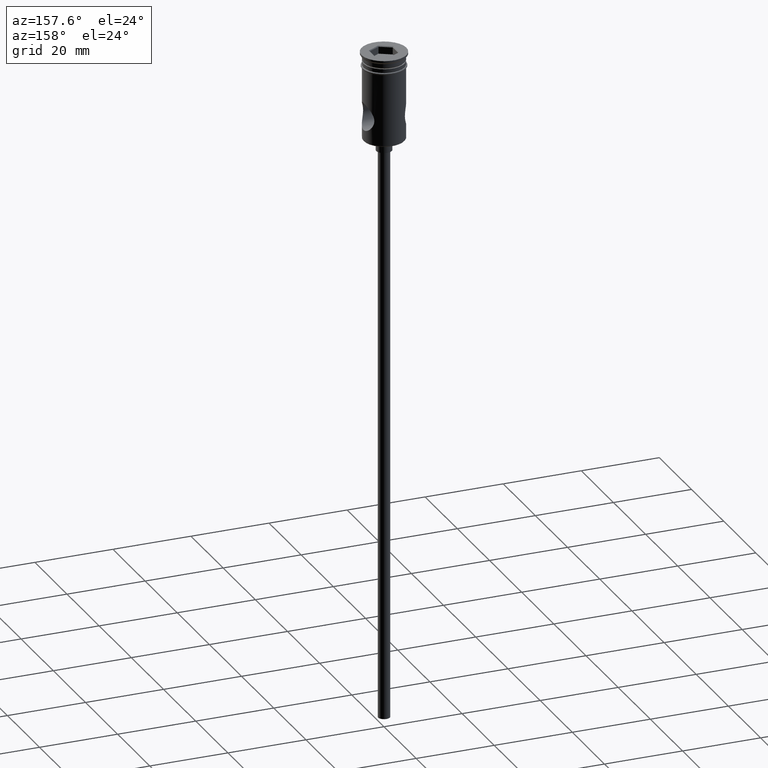
[diagram: clean part render]
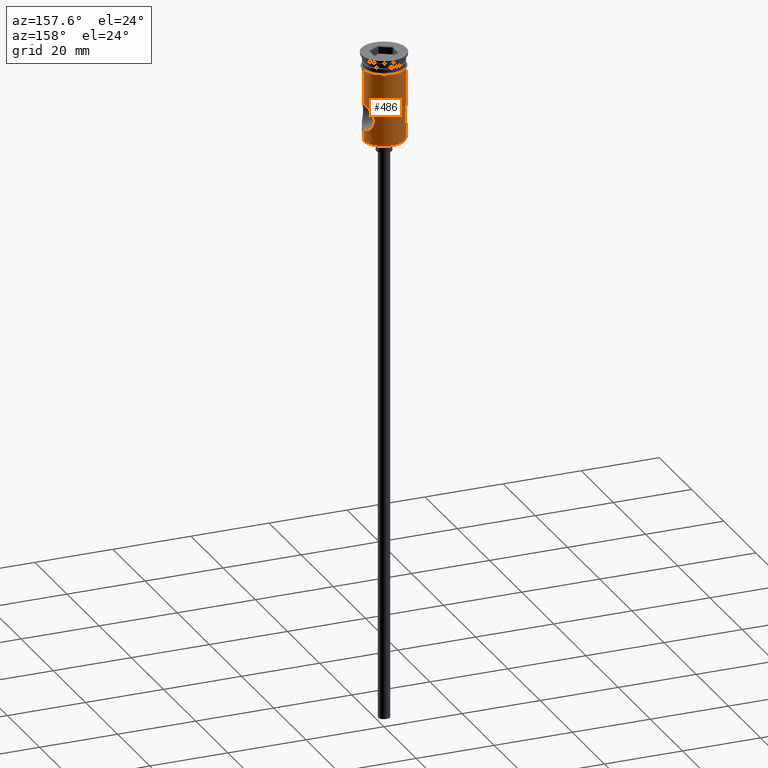
[diagram: same view with one face highlighted and labeled with its STEP entity id]
A machine part, auxiliary view. The second image highlights one B-rep face of the part: STEP entity #486.
In plain terms, the highlighted cylindrical surface (edge-blend (fillet) strip) has radius 5.25 mm, axis along (-0, -0, 1).
Its self-contained STEP definition (entity closure, byte-faithful):
#2 = VERTEX_POINT ( 'NONE', #452 ) ;
#9 = DIRECTION ( 'NONE',  ( -0.000000000000000000, -0.000000000000000000, 1.000000000000000000 ) ) ;
#16 = CARTESIAN_POINT ( 'NONE',  ( 4.015700048634967878, 3.382383198169304883, -15.06996144822462647 ) ) ;
#24 = VECTOR ( 'NONE', #1296, 1000.000000000000000 ) ;
#28 = CARTESIAN_POINT ( 'NONE',  ( 4.213805231981512023, 3.133507475994600444, -17.57552681985903220 ) ) ;
#31 = CARTESIAN_POINT ( 'NONE',  ( 5.249999999999997335, 0.000000000000000000, 0.000000000000000000 ) ) ;
#48 = CARTESIAN_POINT ( 'NONE',  ( 5.171738567981856605, 0.9322884155218371660, -19.38166086832590906 ) ) ;
#51 = VERTEX_POINT ( 'NONE', #251 ) ;
#92 = CARTESIAN_POINT ( 'NONE',  ( -4.708760133973806994, 2.328399268865065874, -13.37747860927764521 ) ) ;
#95 = CARTESIAN_POINT ( 'NONE',  ( -5.171446349193717928, 0.9340234967078269168, -19.38121539794984116 ) ) ;
#111 = CARTESIAN_POINT ( 'NONE',  ( -4.455882725706747038, 2.780268144892075632, -13.86229586798408597 ) ) ;
#114 = CARTESIAN_POINT ( 'NONE',  ( -5.233633430427243383, 0.4750094798020746967, -12.52441511600401824 ) ) ;
#137 = CARTESIAN_POINT ( 'NONE',  ( 5.011119671772967799, 1.580839205956426463, -19.13107480940702132 ) ) ;
#143 = CARTESIAN_POINT ( 'NONE',  ( 4.791726953342656081, 2.154678821938329047, -18.76742029390491950 ) ) ;
#152 = ORIENTED_EDGE ( 'NONE', *, *, #659, .T. ) ;
#153 = CARTESIAN_POINT ( 'NONE',  ( 4.943096194098154150, 1.780193258326856265, -19.02194769508573202 ) ) ;
#168 = CARTESIAN_POINT ( 'NONE',  ( 4.291847880858497000, 3.027309060174748101, -17.77045454751424103 ) ) ;
#186 = CARTESIAN_POINT ( 'NONE',  ( -5.249999999999998224, 6.429395695523602181E-16, -3.799999999999998934 ) ) ;
#201 = CARTESIAN_POINT ( 'NONE',  ( -3.934854629125830172, 3.476098995561850202, -15.52910205287916767 ) ) ;
#207 = CARTESIAN_POINT ( 'NONE',  ( -4.459834455484653404, 2.792467526987479687, -18.15591097312377400 ) ) ;
#209 = ORIENTED_EDGE ( 'NONE', *, *, #526, .F. ) ;
#215 = CIRCLE ( 'NONE', #414, 5.249999999999997335 ) ;
#219 = CARTESIAN_POINT ( 'NONE',  ( -5.010881149324091233, 1.581485525877044829, -19.13068937161849803 ) ) ;
#227 = CARTESIAN_POINT ( 'NONE',  ( -4.791591092289863241, 2.154829214170284502, -13.23284061381127330 ) ) ;
#229 = VERTEX_POINT ( 'NONE', #650 ) ;
#232 = EDGE_CURVE ( 'NONE', #229, #903, #746, .T. ) ;
#240 = VERTEX_POINT ( 'NONE', #186 ) ;
#246 = ORIENTED_EDGE ( 'NONE', *, *, #912, .F. ) ;
#247 = CARTESIAN_POINT ( 'NONE',  ( 3.956270316689134425, 3.451288398606817687, -16.59344471299515433 ) ) ;
#248 = VECTOR ( 'NONE', #687, 1000.000000000000000 ) ;
#251 = CARTESIAN_POINT ( 'NONE',  ( -5.249999999999997335, 6.429395695523601195E-16, -22.29999999999999716 ) ) ;
#275 = CYLINDRICAL_SURFACE ( 'NONE', #1108, 5.249999999999997335 ) ;
#287 = DIRECTION ( 'NONE',  ( -0.000000000000000000, -0.000000000000000000, 1.000000000000000000 ) ) ;
#290 = CARTESIAN_POINT ( 'NONE',  ( 5.249999999999998224, 0.2359691128690733219, -12.50000000000000000 ) ) ;
#332 = B_SPLINE_CURVE_WITH_KNOTS ( 'NONE', 3,
 ( #458, #1118, #114, #1211, #1330, #1124, #559, #227, #92, #761, #111, #566, #779, #1199, #1319, #201, #1325, #1219, #547, #987, #432, #874, #207, #653, #1432, #337, #219, #1101, #95, #663, #994, #442 ),
 .UNSPECIFIED., .F., .F.,
 ( 4, 2, 2, 2, 2, 2, 2, 2, 2, 2, 2, 2, 2, 2, 2, 4 ),
 ( 0.01131190453721613379, 0.01201796450896624492, 0.01272402448071635606, 0.01343008445246646719, 0.01413614442421657832, 0.01484220439596668772, 0.01554826436771679886, 0.01625432433946690999, 0.01696038431121701939, 0.01766644428296713226, 0.01837250425471724166, 0.01978462419821747087, 0.02049068416996758721, 0.02119674414171770355, 0.02190280411346781642, 0.02260886408521793275 ),
 .UNSPECIFIED. ) ;
#337 = CARTESIAN_POINT ( 'NONE',  ( -4.943496079229931617, 1.778885936374027477, -19.02256480771651326 ) ) ;
#345 = CARTESIAN_POINT ( 'NONE',  ( 5.249999999999997335, 0.000000000000000000, -22.29999999999999716 ) ) ;
#367 = CARTESIAN_POINT ( 'NONE',  ( 4.211626988821404183, 3.136439829262892776, -14.43012365747861914 ) ) ;
#379 = CARTESIAN_POINT ( 'NONE',  ( 4.710700327440309643, 2.324554412983745877, -13.37397079666039978 ) ) ;
#395 = CARTESIAN_POINT ( 'NONE',  ( 4.710272676435011796, 2.325337138264823356, -18.62521936663612010 ) ) ;
#407 = CARTESIAN_POINT ( 'NONE',  ( 0.000000000000000000, 0.000000000000000000, -3.799999999999998934 ) ) ;
#414 = AXIS2_PLACEMENT_3D ( 'NONE', #1041, #9, #612 ) ;
#422 = CARTESIAN_POINT ( 'NONE',  ( -5.249999999999997335, 0.000000000000000000, -19.50000000000000000 ) ) ;
#432 = CARTESIAN_POINT ( 'NONE',  ( -4.076244073135415036, 3.310471843351305843, -17.15838242263341229 ) ) ;
#442 = CARTESIAN_POINT ( 'NONE',  ( -5.249999999999997335, 0.000000000000000000, -19.50000000000000000 ) ) ;
#450 = CARTESIAN_POINT ( 'NONE',  ( -5.249999999999997335, 6.428491939192731130E-16, -12.50000000000000000 ) ) ;
#451 = VERTEX_POINT ( 'NONE', #345 ) ;
#452 = CARTESIAN_POINT ( 'NONE',  ( 5.249999999999997335, 0.000000000000000000, -19.50000000000000000 ) ) ;
#458 = CARTESIAN_POINT ( 'NONE',  ( -5.249999999999997335, 6.428491939192731130E-16, -12.50000000000000000 ) ) ;
#470 = LINE ( 'NONE', #1236, #248 ) ;
#471 = ORIENTED_EDGE ( 'NONE', *, *, #989, .T. ) ;
#484 = CARTESIAN_POINT ( 'NONE',  ( 4.073963173537556770, 3.313288510862781866, -14.84939764593511491 ) ) ;
#486 = ADVANCED_FACE ( 'NONE', ( #1345 ), #275, .T. ) ;
#499 = DIRECTION ( 'NONE',  ( -0.000000000000000000, -0.000000000000000000, 1.000000000000000000 ) ) ;
#518 = EDGE_CURVE ( 'NONE', #451, #51, #215, .T. ) ;
#525 = CARTESIAN_POINT ( 'NONE',  ( 5.249999999999997335, 0.000000000000000000, 0.000000000000000000 ) ) ;
#526 = EDGE_CURVE ( 'NONE', #2, #229, #1361, .T. ) ;
#537 = CARTESIAN_POINT ( 'NONE',  ( 5.010722034647405287, 1.582225660229891417, -12.86955452061876493 ) ) ;
#547 = CARTESIAN_POINT ( 'NONE',  ( -3.935709764125990606, 3.475135228226968298, -16.47752279465179726 ) ) ;
#559 = CARTESIAN_POINT ( 'NONE',  ( -4.941870577857391034, 1.783409467750111332, -12.98008101414071547 ) ) ;
#566 = CARTESIAN_POINT ( 'NONE',  ( -4.290711569970873107, 3.028956263479465338, -14.23220649750372324 ) ) ;
#590 = CARTESIAN_POINT ( 'NONE',  ( 3.934500147216331456, 3.476502778859750453, -15.53158113228982451 ) ) ;
#593 = EDGE_LOOP ( 'NONE', ( #701, #471, #915, #152, #1310, #1388, #209, #246 ) ) ;
#595 = CARTESIAN_POINT ( 'NONE',  ( 4.542248346412462112, 2.638603940227051137, -13.68972905434603149 ) ) ;
#612 = DIRECTION ( 'NONE',  ( -1.000000000000000000, 0.000000000000000000, 0.000000000000000000 ) ) ;
#638 = VERTEX_POINT ( 'NONE', #422 ) ;
#650 = CARTESIAN_POINT ( 'NONE',  ( 5.249999999999997335, 9.037561610381727207E-20, -12.50000000000000000 ) ) ;
#653 = CARTESIAN_POINT ( 'NONE',  ( -4.710874926819403896, 2.324119615847294540, -18.62629487387890137 ) ) ;
#659 = EDGE_CURVE ( 'NONE', #873, #240, #1411, .T. ) ;
#663 = CARTESIAN_POINT ( 'NONE',  ( -5.233651169580556761, 0.4745025501927483402, -19.47560998813100497 ) ) ;
#687 = DIRECTION ( 'NONE',  ( -0.000000000000000000, -0.000000000000000000, 1.000000000000000000 ) ) ;
#697 = CARTESIAN_POINT ( 'NONE',  ( 3.940413688538167758, 3.469280093805877652, -16.47760714426992834 ) ) ;
#701 = ORIENTED_EDGE ( 'NONE', *, *, #518, .T. ) ;
#703 = CARTESIAN_POINT ( 'NONE',  ( 4.455965565348065205, 2.780112593366052653, -13.86216665491766165 ) ) ;
#711 = CARTESIAN_POINT ( 'NONE',  ( 5.249999999999997335, 0.2394817979535390218, -19.50000000000000355 ) ) ;
#731 = DIRECTION ( 'NONE',  ( 1.000000000000000000, 0.000000000000000000, 0.000000000000000000 ) ) ;
#744 = CARTESIAN_POINT ( 'NONE',  ( -5.249999999999997335, 6.429395695523601195E-16, 0.000000000000000000 ) ) ;
#746 = LINE ( 'NONE', #525, #24 ) ;
#761 = CARTESIAN_POINT ( 'NONE',  ( -4.541142868155102263, 2.640433033719366218, -13.69193262782664355 ) ) ;
#763 = EDGE_CURVE ( 'NONE', #873, #638, #332, .T. ) ;
#779 = CARTESIAN_POINT ( 'NONE',  ( -4.211358233975348142, 3.136775979440171724, -14.43100953861071289 ) ) ;
#787 = VECTOR ( 'NONE', #1183, 1000.000000000000000 ) ;
#814 = CARTESIAN_POINT ( 'NONE',  ( 4.291292931424321999, 3.028111643923959484, -14.23084841941946799 ) ) ;
#822 = CARTESIAN_POINT ( 'NONE',  ( 4.791879949463428545, 2.154107611278242462, -13.23235612182024212 ) ) ;
#838 = AXIS2_PLACEMENT_3D ( 'NONE', #407, #287, #1287 ) ;
#839 = CARTESIAN_POINT ( 'NONE',  ( 4.542868706571997706, 2.637461925376886285, -18.31144200051445736 ) ) ;
#846 = CARTESIAN_POINT ( 'NONE',  ( 5.171017401262783864, 0.9368000147816671896, -12.61943741575975864 ) ) ;
#873 = VERTEX_POINT ( 'NONE', #450 ) ;
#874 = CARTESIAN_POINT ( 'NONE',  ( -4.282019573606240748, 3.045778496349780706, -17.78256220141813060 ) ) ;
#903 = VERTEX_POINT ( 'NONE', #1145 ) ;
#911 = CARTESIAN_POINT ( 'NONE',  ( 4.456129832326547024, 2.779831882631588424, -18.13814034968121192 ) ) ;
#912 = EDGE_CURVE ( 'NONE', #451, #2, #1363, .T. ) ;
#915 = ORIENTED_EDGE ( 'NONE', *, *, #763, .F. ) ;
#920 = CARTESIAN_POINT ( 'NONE',  ( 5.125279937689080967, 1.158394803269064299, -19.31071042783137059 ) ) ;
#932 = CARTESIAN_POINT ( 'NONE',  ( 4.076450620869312758, 3.310222646711700190, -17.15912893648900805 ) ) ;
#987 = CARTESIAN_POINT ( 'NONE',  ( -4.017013811892041986, 3.380824786493573431, -16.93520940805085573 ) ) ;
#989 = EDGE_CURVE ( 'NONE', #51, #638, #470, .T. ) ;
#994 = CARTESIAN_POINT ( 'NONE',  ( -5.249999999999997335, 0.2391654009334201192, -19.50000000000000355 ) ) ;
#1021 = VECTOR ( 'NONE', #499, 1000.000000000000000 ) ;
#1041 = CARTESIAN_POINT ( 'NONE',  ( 0.000000000000000000, 0.000000000000000000, -22.29999999999999716 ) ) ;
#1058 = EDGE_CURVE ( 'NONE', #903, #240, #1070, .T. ) ;
#1070 = CIRCLE ( 'NONE', #838, 5.249999999999999112 ) ;
#1077 = CARTESIAN_POINT ( 'NONE',  ( 5.249999999999997335, 9.037561610381727207E-20, -12.50000000000000000 ) ) ;
#1101 = CARTESIAN_POINT ( 'NONE',  ( -5.124746031636079557, 1.160605218168686781, -19.30988035096184063 ) ) ;
#1108 = AXIS2_PLACEMENT_3D ( 'NONE', #1252, #1269, #731 ) ;
#1118 = CARTESIAN_POINT ( 'NONE',  ( -5.249999999999997335, 0.2356573567156205196, -12.49999999999999822 ) ) ;
#1124 = CARTESIAN_POINT ( 'NONE',  ( -5.010287030224573002, 1.583769054670561172, -12.87024185501964446 ) ) ;
#1143 = CARTESIAN_POINT ( 'NONE',  ( 3.913212435243750065, 3.499895492128140884, -16.12176624835054284 ) ) ;
#1145 = CARTESIAN_POINT ( 'NONE',  ( 5.249999999999999112, 0.000000000000000000, -3.799999999999998934 ) ) ;
#1155 = CARTESIAN_POINT ( 'NONE',  ( 4.941524827079387450, 1.784271681777895413, -12.98066119771261739 ) ) ;
#1169 = CARTESIAN_POINT ( 'NONE',  ( 5.249999999999997335, 0.000000000000000000, -19.50000000000000000 ) ) ;
#1183 = DIRECTION ( 'NONE',  ( -0.000000000000000000, -0.000000000000000000, 1.000000000000000000 ) ) ;
#1199 = CARTESIAN_POINT ( 'NONE',  ( -4.074555398726829480, 3.312536795685572244, -14.84752675069979055 ) ) ;
#1211 = CARTESIAN_POINT ( 'NONE',  ( -5.171157607198458628, 0.9357787620484806501, -12.61922458594744434 ) ) ;
#1219 = CARTESIAN_POINT ( 'NONE',  ( -3.913265713256698586, 3.499835925500728084, -16.24147938307706696 ) ) ;
#1236 = CARTESIAN_POINT ( 'NONE',  ( -5.249999999999997335, 6.429395695523601195E-16, 0.000000000000000000 ) ) ;
#1242 = CARTESIAN_POINT ( 'NONE',  ( 4.017161582871402459, 3.380647649991993298, -16.93567858667559634 ) ) ;
#1252 = CARTESIAN_POINT ( 'NONE',  ( 0.000000000000000000, 0.000000000000000000, 0.000000000000000000 ) ) ;
#1269 = DIRECTION ( 'NONE',  ( -0.000000000000000000, -0.000000000000000000, 1.000000000000000000 ) ) ;
#1282 = CARTESIAN_POINT ( 'NONE',  ( 5.233763254461210046, 0.4740647931550008298, -12.52421804113795645 ) ) ;
#1287 = DIRECTION ( 'NONE',  ( 1.000000000000000000, 0.000000000000000000, 0.000000000000000000 ) ) ;
#1296 = DIRECTION ( 'NONE',  ( -0.000000000000000000, -0.000000000000000000, 1.000000000000000000 ) ) ;
#1299 = CARTESIAN_POINT ( 'NONE',  ( 5.125401452483045794, 1.158029921580446375, -12.68909474010616023 ) ) ;
#1310 = ORIENTED_EDGE ( 'NONE', *, *, #1058, .F. ) ;
#1319 = CARTESIAN_POINT ( 'NONE',  ( -4.015860184454199455, 3.382190437898870972, -15.06951789628486083 ) ) ;
#1325 = CARTESIAN_POINT ( 'NONE',  ( -3.912973667625769814, 3.500162442579392241, -15.76330045747091546 ) ) ;
#1330 = CARTESIAN_POINT ( 'NONE',  ( -5.125624017123609377, 1.157272214673061184, -12.68874170657910128 ) ) ;
#1345 = FACE_OUTER_BOUND ( 'NONE', #593, .T. ) ;
#1353 = CARTESIAN_POINT ( 'NONE',  ( 3.918847831090380929, 3.493622200933427457, -16.24210921229989424 ) ) ;
#1360 = CARTESIAN_POINT ( 'NONE',  ( 3.912935558424084803, 3.500205050033672105, -15.76559328519909897 ) ) ;
#1361 = B_SPLINE_CURVE_WITH_KNOTS ( 'NONE', 3,
 ( #1169, #711, #1378, #48, #920, #137, #153, #143, #395, #839, #911, #168, #28, #932, #1242, #247, #697, #1353, #1143, #1360, #590, #16, #484, #367, #814, #703, #595, #379, #822, #1155, #537, #1299, #846, #1282, #290, #1077 ),
 .UNSPECIFIED., .F., .F.,
 ( 4, 2, 2, 2, 2, 2, 2, 2, 2, 2, 2, 2, 2, 2, 2, 2, 2, 4 ),
 ( 0.000000000000000000, 0.0007069940335760138911, 0.001413988067152027782, 0.002120982100728041782, 0.002827976134304055564, 0.003534970167880069347, 0.004241964201456083564, 0.004948958235032096913, 0.005302455251820098817, 0.005655952268608101588, 0.006362946302184104529, 0.007069940335760109204, 0.007776934369336112145, 0.008483928402912116820, 0.009190922436488120628, 0.009897916470064124436, 0.01060491050364012824, 0.01131190453721613205 ),
 .UNSPECIFIED. ) ;
#1363 = LINE ( 'NONE', #31, #1021 ) ;
#1378 = CARTESIAN_POINT ( 'NONE',  ( 5.233705508463598832, 0.4736751586742009579, -19.47569040078916203 ) ) ;
#1388 = ORIENTED_EDGE ( 'NONE', *, *, #232, .F. ) ;
#1411 = LINE ( 'NONE', #744, #787 ) ;
#1432 = CARTESIAN_POINT ( 'NONE',  ( -4.793649463825862433, 2.150235679629799446, -18.77070743917913731 ) ) ;